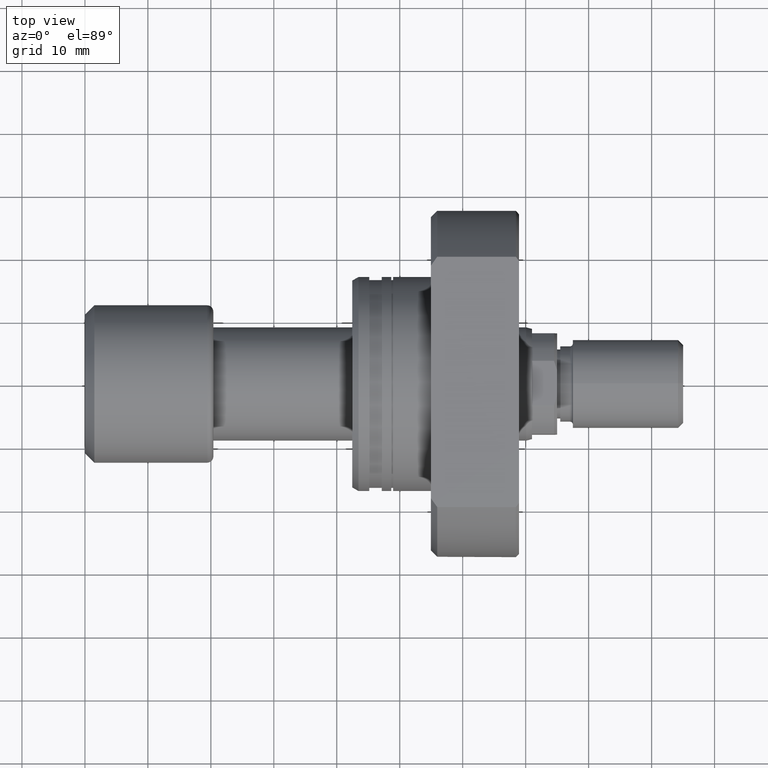
[diagram: clean part render]
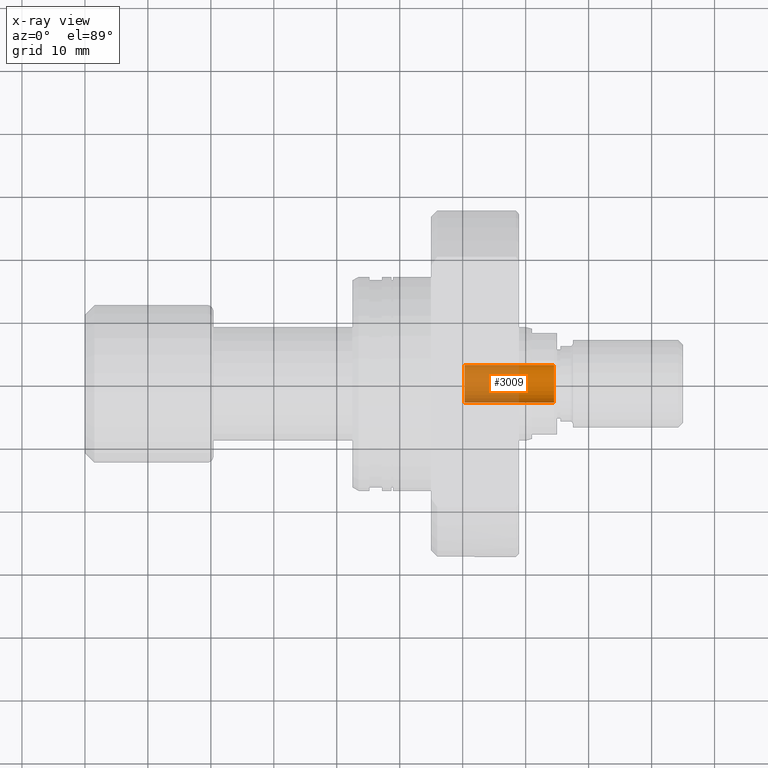
[diagram: x-ray — body ghosted, one internal face saturated and labeled with its STEP entity id]
A machine part, top view, then the same camera in x-ray: the body is ghosted and one INTERNAL B-rep face — a face not visible from any outside direction — is saturated and labeled: STEP entity #3009.
In plain terms, the highlighted cylindrical surface (edge-blend (fillet) strip) has radius 3 mm, axis along (1, -0, 0).
Its self-contained STEP definition (entity closure, byte-faithful):
#66 = VERTEX_POINT ( 'NONE', #2661 ) ;
#177 = ORIENTED_EDGE ( 'NONE', *, *, #3485, .F. ) ;
#243 = VECTOR ( 'NONE', #250, 1000.000000000000000 ) ;
#250 = DIRECTION ( 'NONE',  ( 1.000000000000000000, -1.657264799492230625E-14, -0.000000000000000000 ) ) ;
#273 = CARTESIAN_POINT ( 'NONE',  ( 60.29999999999999716, -9.993306740938150862E-13, 0.000000000000000000 ) ) ;
#295 = DIRECTION ( 'NONE',  ( 1.000000000000000000, -1.657264799492230625E-14, -0.000000000000000000 ) ) ;
#303 = AXIS2_PLACEMENT_3D ( 'NONE', #1369, #3638, #2473 ) ;
#404 = DIRECTION ( 'NONE',  ( 1.000000000000000000, -1.657264799492230625E-14, -0.000000000000000000 ) ) ;
#418 = EDGE_CURVE ( 'NONE', #3114, #66, #2611, .T. ) ;
#433 = EDGE_CURVE ( 'NONE', #1011, #3114, #2794, .T. ) ;
#517 = AXIS2_PLACEMENT_3D ( 'NONE', #1107, #3124, #2488 ) ;
#563 = CARTESIAN_POINT ( 'NONE',  ( 60.29999999999994742, -3.000000000001362910, 3.673940397442505574E-16 ) ) ;
#573 = FACE_OUTER_BOUND ( 'NONE', #863, .T. ) ;
#863 = EDGE_LOOP ( 'NONE', ( #177, #3266, #3461, #2311 ) ) ;
#876 = AXIS2_PLACEMENT_3D ( 'NONE', #273, #295, #3658 ) ;
#1011 = VERTEX_POINT ( 'NONE', #563 ) ;
#1107 = CARTESIAN_POINT ( 'NONE',  ( 60.29999999999999716, -9.993306740938150862E-13, 0.000000000000000000 ) ) ;
#1369 = CARTESIAN_POINT ( 'NONE',  ( 74.50000000000012790, -1.234662275621713888E-12, 0.000000000000000000 ) ) ;
#1763 = CARTESIAN_POINT ( 'NONE',  ( 74.50000000000007105, -3.000000000001598721, 3.673940397442650035E-16 ) ) ;
#1889 = CARTESIAN_POINT ( 'NONE',  ( 60.30000000000004690, 2.999999999999364508, 0.000000000000000000 ) ) ;
#1967 = CYLINDRICAL_SURFACE ( 'NONE', #876, 3.000000000000363709 ) ;
#2198 = CARTESIAN_POINT ( 'NONE',  ( 60.29999999999994742, -3.000000000001362910, 3.673940397442505574E-16 ) ) ;
#2293 = CIRCLE ( 'NONE', #517, 3.000000000000363709 ) ;
#2311 = ORIENTED_EDGE ( 'NONE', *, *, #3175, .F. ) ;
#2396 = VECTOR ( 'NONE', #404, 1000.000000000000000 ) ;
#2473 = DIRECTION ( 'NONE',  ( -1.850371707708369777E-14, -1.000000000000000000, 0.000000000000000000 ) ) ;
#2488 = DIRECTION ( 'NONE',  ( 1.619075244244823791E-14, 1.000000000000000000, 0.000000000000000000 ) ) ;
#2611 = CIRCLE ( 'NONE', #303, 3.000000000000363709 ) ;
#2643 = CARTESIAN_POINT ( 'NONE',  ( 60.30000000000004690, 2.999999999999364508, 0.000000000000000000 ) ) ;
#2661 = CARTESIAN_POINT ( 'NONE',  ( 74.50000000000017053, 2.999999999999129141, 0.000000000000000000 ) ) ;
#2794 = LINE ( 'NONE', #2198, #243 ) ;
#3009 = ADVANCED_FACE ( 'NONE', ( #573 ), #1967, .F. ) ;
#3114 = VERTEX_POINT ( 'NONE', #1763 ) ;
#3124 = DIRECTION ( 'NONE',  ( 1.000000000000000000, -1.657264799492230625E-14, 0.000000000000000000 ) ) ;
#3175 = EDGE_CURVE ( 'NONE', #3383, #66, #3487, .T. ) ;
#3266 = ORIENTED_EDGE ( 'NONE', *, *, #433, .T. ) ;
#3383 = VERTEX_POINT ( 'NONE', #1889 ) ;
#3461 = ORIENTED_EDGE ( 'NONE', *, *, #418, .T. ) ;
#3485 = EDGE_CURVE ( 'NONE', #1011, #3383, #2293, .T. ) ;
#3487 = LINE ( 'NONE', #2643, #2396 ) ;
#3638 = DIRECTION ( 'NONE',  ( 1.000000000000000000, -1.657264799492254606E-14, 0.000000000000000000 ) ) ;
#3658 = DIRECTION ( 'NONE',  ( 1.619075244244823791E-14, 1.000000000000000000, 0.000000000000000000 ) ) ;